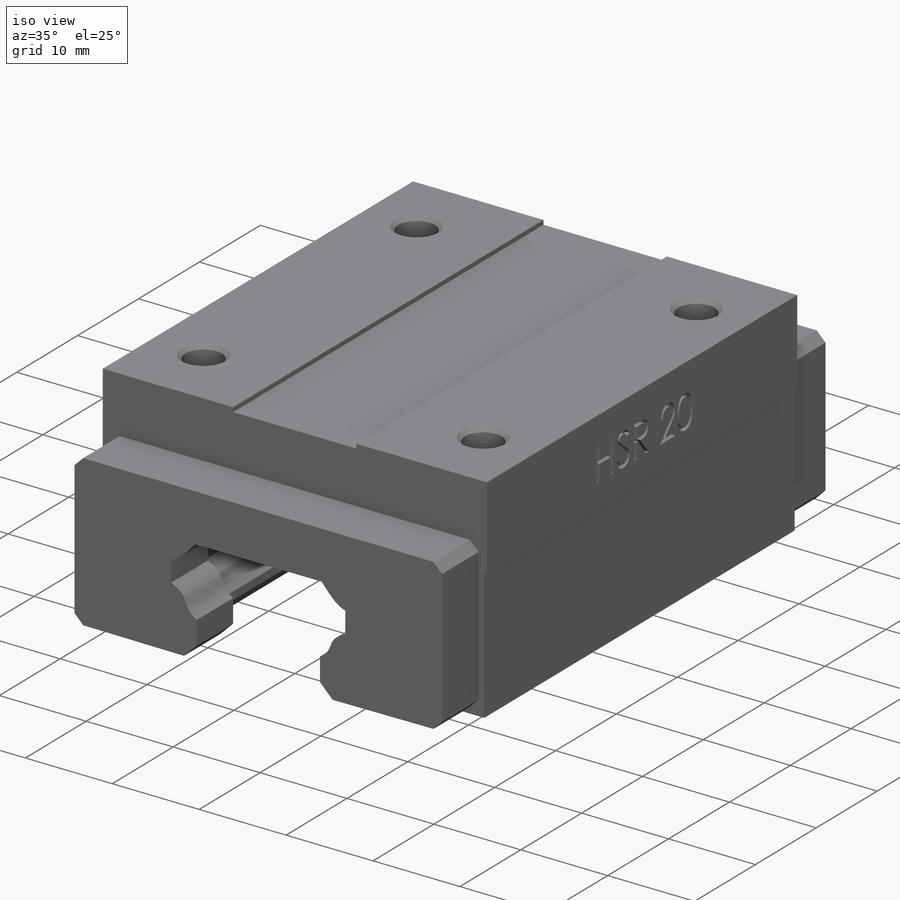
[diagram: iso view]
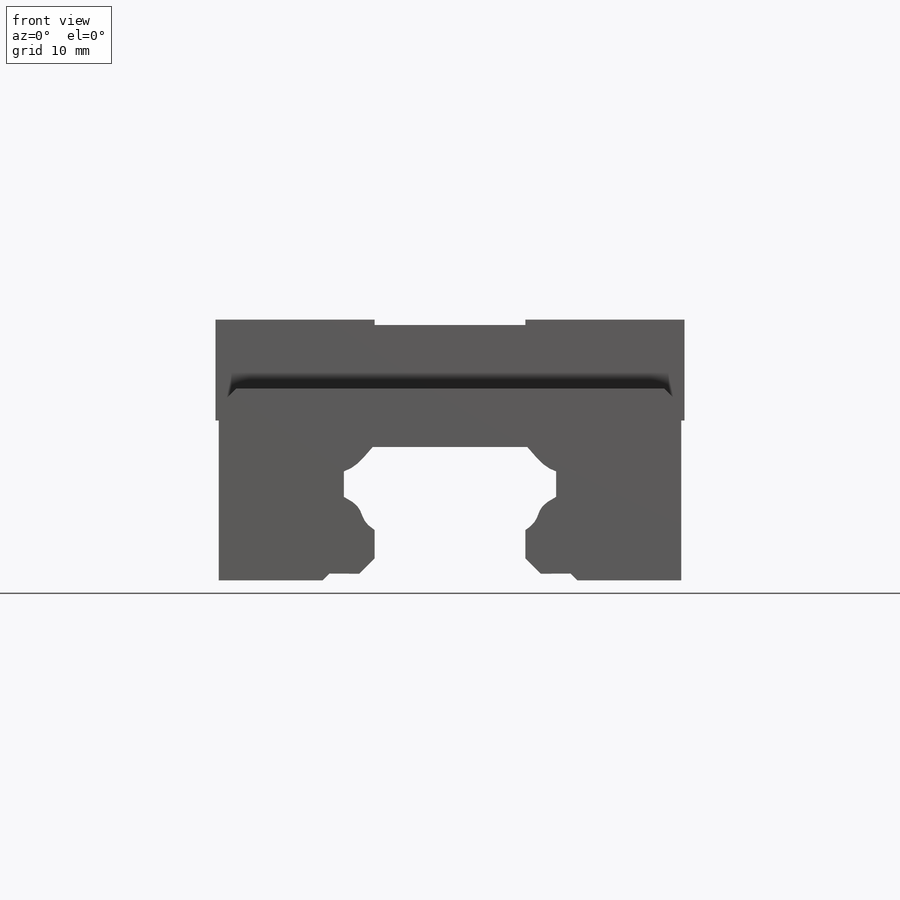
[diagram: front view]
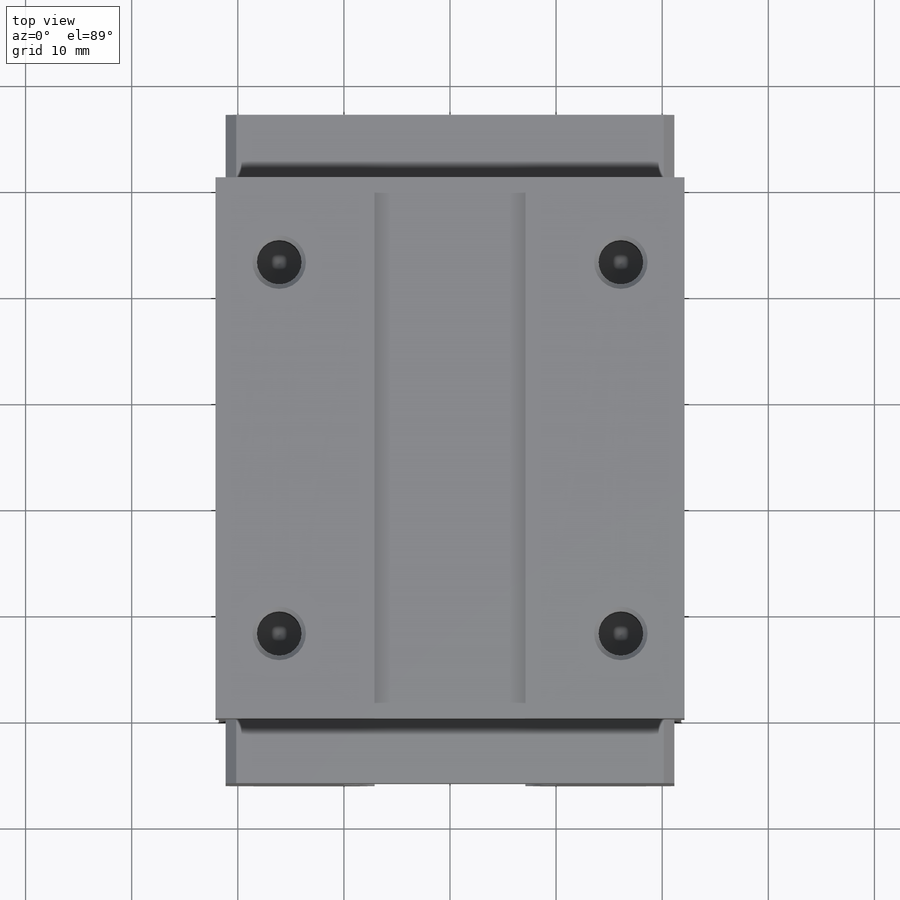
[diagram: top view]
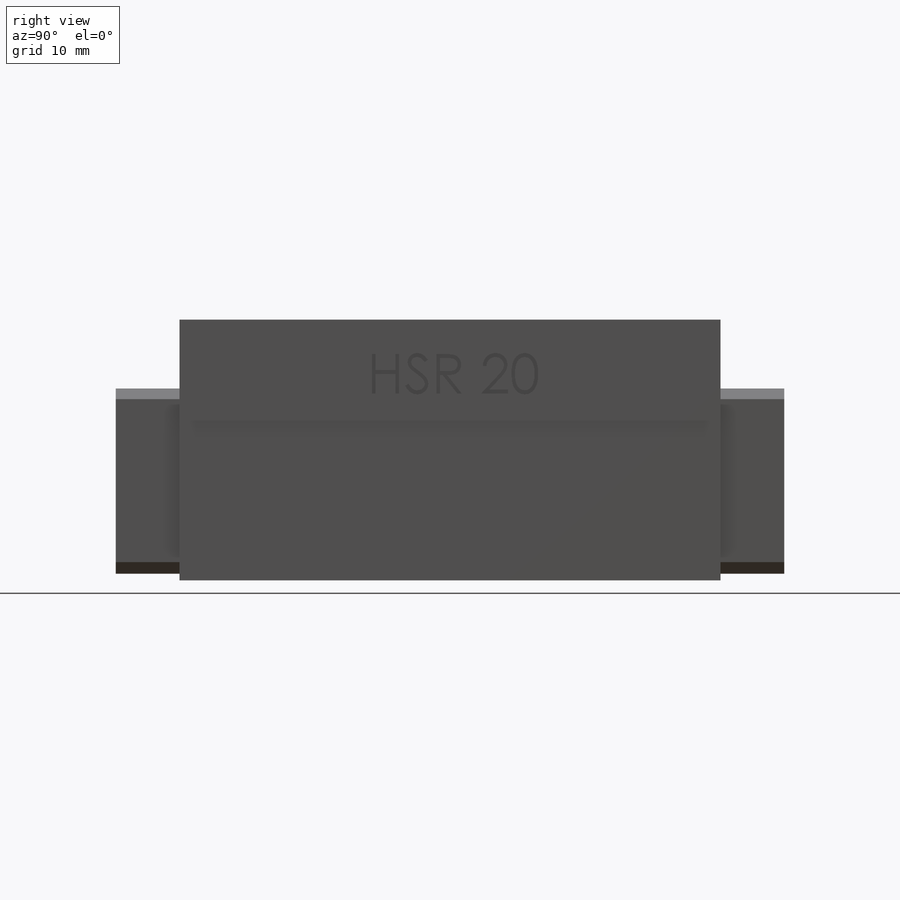
[diagram: right view]
SOLIDWORKS PART (.sldprt)
format: sldprt  version: not decoded by parser v0  size: 548,352 bytes
history: native  units: mm
features: sketch x5, mirror x3, extrude x2, plane x2, material x1, hole x1, thread x1, chamfer x1, cut_extrude x1 (+12 scaffold rows collapsed)
feature tree (29):
  scaffold x12  (default folders/planes/origin — collapsed)
  material  "Material <not specified>"
  sketch  "Sketch1"  dims[c1.D14=2.0mm c1.D15=2.0mm c1.D1=10.0mm c1.D2=18.0mm c1.D3=7.5mm c1.D4=7.1mm c1.D5=135.0deg c1.D6=1.5mm c1.D7=45.0deg c1.D8=~2.405687mm c1.D10=26.5mm c1.D11=22.1mm c1.D12=25.0mm c1.D13=9.5mm c2.D14=~22.240191mm c2.D16=30.0mm c2.D12=21.8mm c3.D14=0.3mm c3.D10=15.0mm c4.D14=0.5mm c4.D15=0.3mm c4.D9=2.0mm]
  extrude  "Boss-Extrude1"  Depth=51mm
  hole  "M5 Tapped Hole1"  Diameter=4.2mm Depth=8mm
  sketch  "3DSketch1"  dims[D1=8.0mm D2=6.0mm]
  sketch  "Sketch3"  dims[hole-wizard template sketch: 39 standard entries collapsed; hole parameters kept: c13.Tap Drill Dia.=4.2mm c13.Tap Drill Depth=8.0mm c13.Near C'Sink Dia.=5.05mm c13.D4=~33.297463mm c13.Near C'Sink Angle=90.0deg c14.D5=~14.816244mm c14.Drill Angle=118.0deg]
  thread  "Hole Thread1"  Diameter=8mm  [1 undecoded]
  plane  "Plane1"  Offset=25.5mm
  mirror  "Mirror1"
  plane  "Plane2"  Offset=22.1mm
  mirror  "Mirror2"
  sketch  "Sketch5"  dims[c1.D1=~23.023835mm c1.D2=~42.165744mm c2.D1=~4.680292mm]
  extrude  "Boss-Extrude3"  Depth=6mm
  chamfer  "Chamfer1"  Distance=1mm Angle=45deg
  mirror  "Mirror4"
  sketch  "Sketch6"
  cut_extrude  "Cut-Extrude1"  Depth=0.5mm
decode coverage: 10 of 14 modeling features carry decoded parameters
note: ~ marks probable driven/reference dimensions
note: 1 parameter value undecoded
note: suppression state not decoded; provenance and decode notes live in map.json
